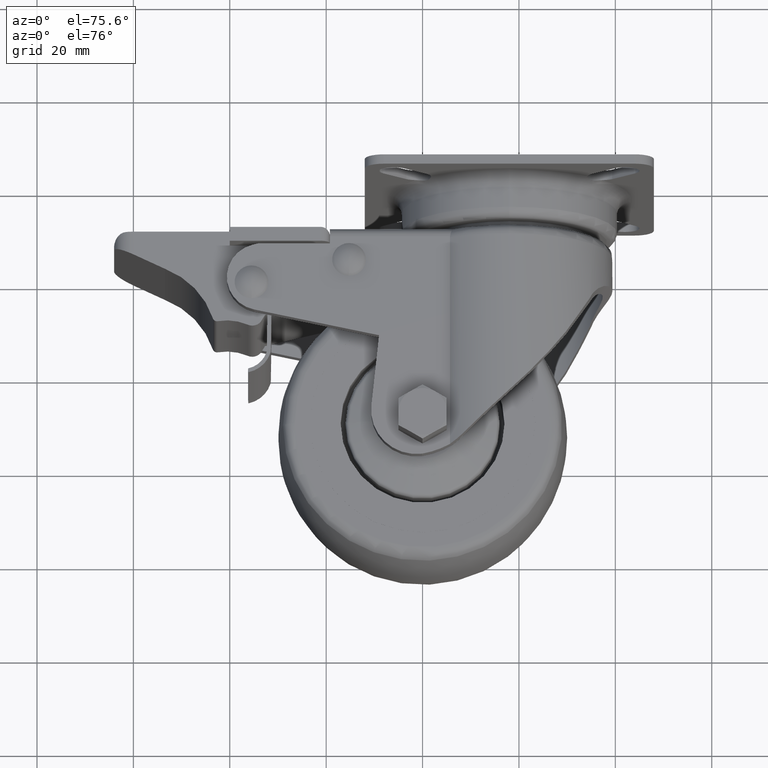
[diagram: clean part render]
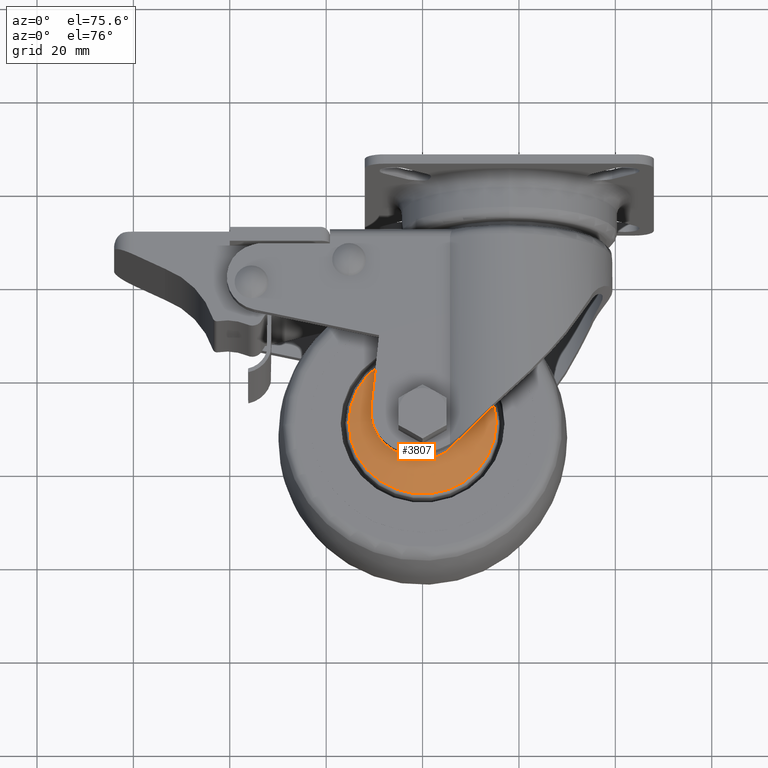
[diagram: same view with one face highlighted and labeled with its STEP entity id]
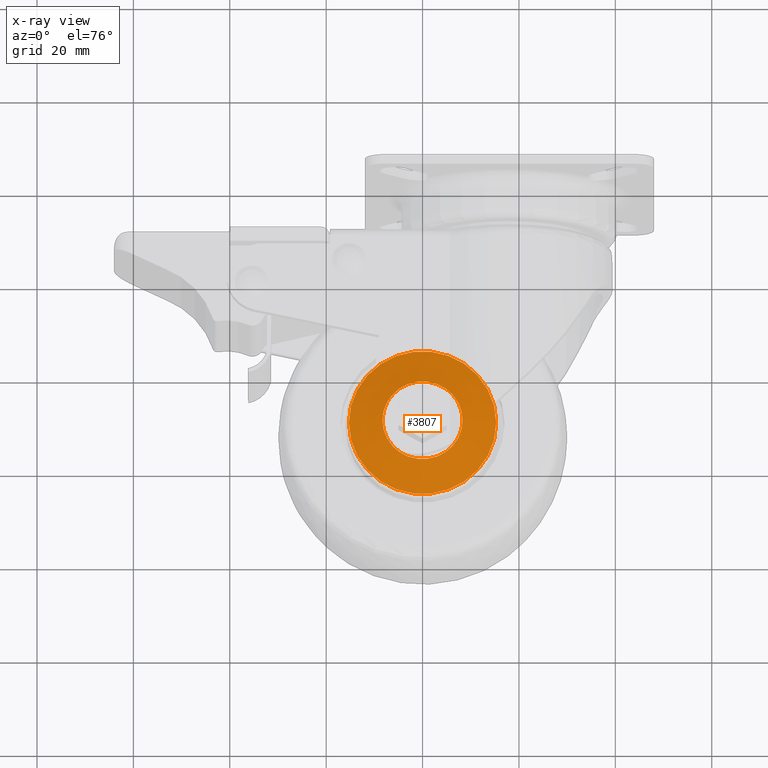
[diagram: x-ray of the same camera — body ghosted, the highlighted face saturated]
A machine part, auxiliary view. The second image highlights one B-rep face of the part: STEP entity #3807.
The next image is the same camera in x-ray: the body ghosted, the highlighted face saturated — about 0% of this face is hidden behind the body in this view.
In plain terms, the highlighted conical surface has half-angle 74 deg.
Its self-contained STEP definition (entity closure, byte-faithful):
#192=LINE('',#6175,#423);
#423=VECTOR('',#4893,15.275637355817);
#887=FACE_OUTER_BOUND('',#1129,.T.);
#1129=EDGE_LOOP('',(#2735,#2736,#2737,#2738));
#1395=CIRCLE('',#4297,15.275637355817);
#1396=CIRCLE('',#4299,8.3175482605573);
#1699=VERTEX_POINT('',#6170);
#1700=VERTEX_POINT('',#6174);
#2093=EDGE_CURVE('',#1699,#1699,#1395,.T.);
#2094=EDGE_CURVE('',#1699,#1700,#192,.T.);
#2095=EDGE_CURVE('',#1700,#1700,#1396,.T.);
#2735=ORIENTED_EDGE('',*,*,#2093,.F.);
#2736=ORIENTED_EDGE('',*,*,#2094,.T.);
#2737=ORIENTED_EDGE('',*,*,#2095,.T.);
#2738=ORIENTED_EDGE('',*,*,#2094,.F.);
#3749=CONICAL_SURFACE('',#4298,15.275637355817,1.2915436464758);
#3807=ADVANCED_FACE('',(#887),#3749,.T.);
#4297=AXIS2_PLACEMENT_3D('',#6172,#4889,#4890);
#4298=AXIS2_PLACEMENT_3D('',#6173,#4891,#4892);
#4299=AXIS2_PLACEMENT_3D('',#6176,#4894,#4895);
#4889=DIRECTION('center_axis',(1.,0.,0.));
#4890=DIRECTION('ref_axis',(0.,0.,-1.));
#4891=DIRECTION('center_axis',(1.,0.,0.));
#4892=DIRECTION('ref_axis',(0.,0.,-1.));
#4893=DIRECTION('',(-0.275637355817003,1.17720605907382E-16,-0.961261695938318));
#4894=DIRECTION('center_axis',(1.,0.,0.));
#4895=DIRECTION('ref_axis',(0.,0.,-1.));
#6170=CARTESIAN_POINT('',(2.01456909379523,-1.8707260392737E-15,15.275637355817));
#6172=CARTESIAN_POINT('Origin',(2.01456909379523,0.,0.));
#6173=CARTESIAN_POINT('Origin',(2.01456909379523,0.,0.));
#6174=CARTESIAN_POINT('',(0.0193691520308048,-1.01860588540451E-15,8.31754826055731));
#6175=CARTESIAN_POINT('',(2.01456909379523,-1.8707260392737E-15,15.275637355817));
#6176=CARTESIAN_POINT('Origin',(0.0193691520308402,0.,0.));